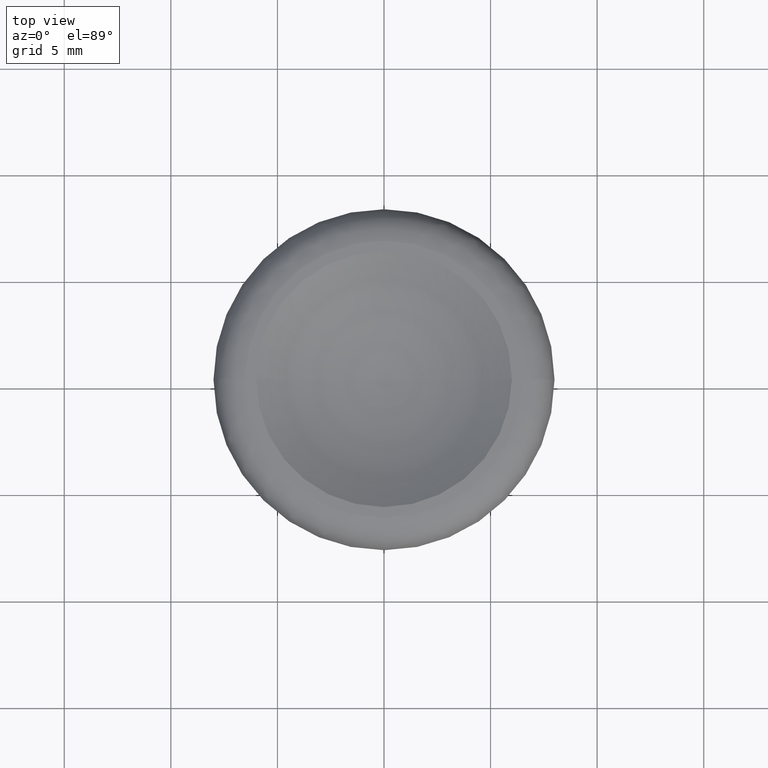
[diagram: clean part render]
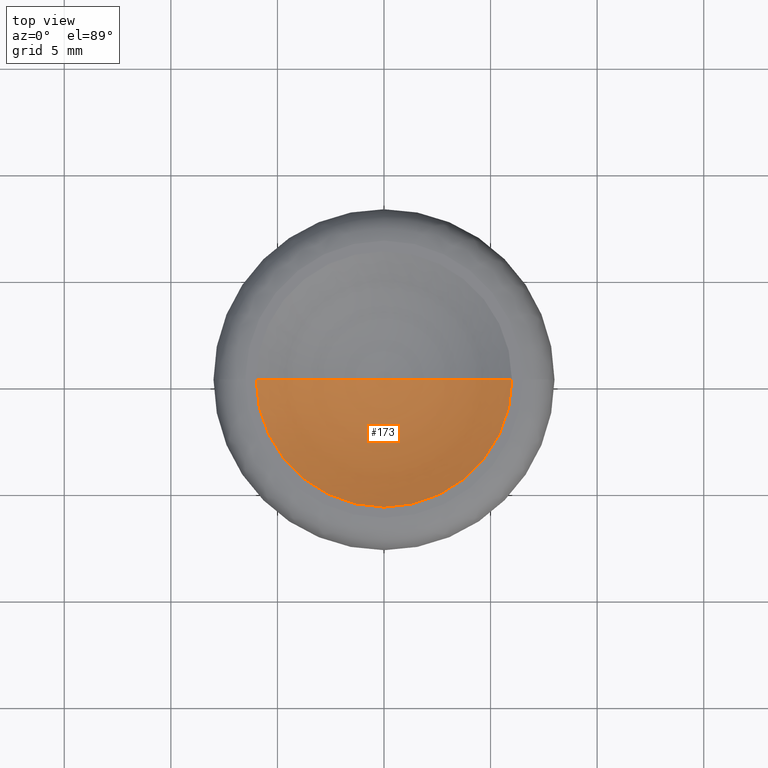
[diagram: same view with one face highlighted and labeled with its STEP entity id]
A machine part, top view. The second image highlights one B-rep face of the part: STEP entity #173.
In plain terms, the highlighted spherical surface has radius 10 mm.
Its self-contained STEP definition (entity closure, byte-faithful):
#173=ADVANCED_FACE('',(#812),#811,.F.);
#811=SPHERICAL_SURFACE('',#1479,1.00000000000E+01);
#812=FACE_OUTER_BOUND('',#1480,.T.);
#1476=CARTESIAN_POINT('',(0.00000000000E+00,0.00000000000E+00,1.75000000000E+01));
#1477=DIRECTION('',(0.00000000000E+00,0.00000000000E+00,-1.00000000000E+00));
#1478=DIRECTION('',(1.00000000000E+00,-1.22460635382E-16,-0.00000000000E+00));
#1479=AXIS2_PLACEMENT_3D('',#1476,#1477,#1478);
#1480=EDGE_LOOP('',(#2016,#2017,#2018));
#2016=ORIENTED_EDGE('',*,*,#2255,.F.);
#2017=ORIENTED_EDGE('',*,*,#2270,.T.);
#2018=ORIENTED_EDGE('',*,*,#2271,.F.);
#2255=EDGE_CURVE('',#3315,#3314,#3322,.T.);
#2270=EDGE_CURVE('',#3315,#3426,#3427,.T.);
#2271=EDGE_CURVE('',#3314,#3426,#3433,.T.);
#3314=VERTEX_POINT('',#4317);
#3315=VERTEX_POINT('',#4318);
#3322=CIRCLE('',#4326,6.00000000000E+00);
#3426=VERTEX_POINT('',#4397);
#3427=(BOUNDED_CURVE() B_SPLINE_CURVE(2,(#4398,#4399,#4400),.UNSPECIFIED.,.F.,.F.) B_SPLINE_CURVE_WITH_KNOTS((3,3),(0.00000000000E+00,1.00000000000E+00),.UNSPECIFIED.) CURVE() GEOMETRIC_REPRESENTATION_ITEM() RATIONAL_B_SPLINE_CURVE((1.00000000000E+00,9.48683298051E-01,1.00000000000E+00)) REPRESENTATION_ITEM('') );
#3433=(BOUNDED_CURVE() B_SPLINE_CURVE(2,(#4401,#4402,#4403),.UNSPECIFIED.,.F.,.F.) B_SPLINE_CURVE_WITH_KNOTS((3,3),(0.00000000000E+00,1.00000000000E+00),.UNSPECIFIED.) CURVE() GEOMETRIC_REPRESENTATION_ITEM() RATIONAL_B_SPLINE_CURVE((7.50000000000E-01,7.11512473538E-01,7.50000000000E-01)) REPRESENTATION_ITEM('') );
#4317=CARTESIAN_POINT('',(-6.00000000000E+00,0.00000000000E+00,9.50000000000E+00));
#4318=CARTESIAN_POINT('',(6.00000000000E+00,-2.96059473233E-16,9.50000000000E+00));
#4323=CARTESIAN_POINT('',(0.00000000000E+00,0.00000000000E+00,9.50000000000E+00));
#4324=DIRECTION('',(-0.00000000000E+00,0.00000000000E+00,-1.00000000000E+00));
#4325=DIRECTION('',(-1.00000000000E+00,-1.22460635382E-16,0.00000000000E+00));
#4326=AXIS2_PLACEMENT_3D('',#4323,#4324,#4325);
#4397=CARTESIAN_POINT('',(1.77635683940E-15,-1.97215226305E-31,7.50000000000E+00));
#4398=CARTESIAN_POINT('',(6.00000000000E+00,-7.34763812293E-16,9.50000000000E+00));
#4399=CARTESIAN_POINT('',(3.33333333333E+00,-4.08202117941E-16,7.50000000000E+00));
#4400=CARTESIAN_POINT('',(1.77635683940E-15,-1.97215226305E-31,7.50000000000E+00));
#4401=CARTESIAN_POINT('',(-6.00000000000E+00,8.88178419700E-16,9.50000000000E+00));
#4402=CARTESIAN_POINT('',(-3.33333333333E+00,4.68111129144E-16,7.50000000000E+00));
#4403=CARTESIAN_POINT('',(-1.77635683940E-15,2.62953635074E-31,7.50000000000E+00));